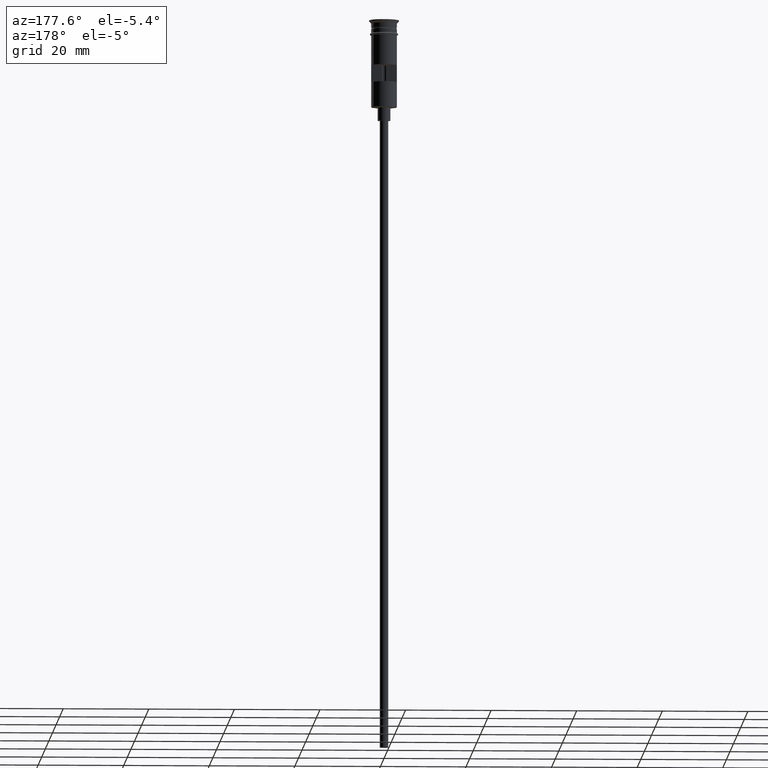
[diagram: clean part render]
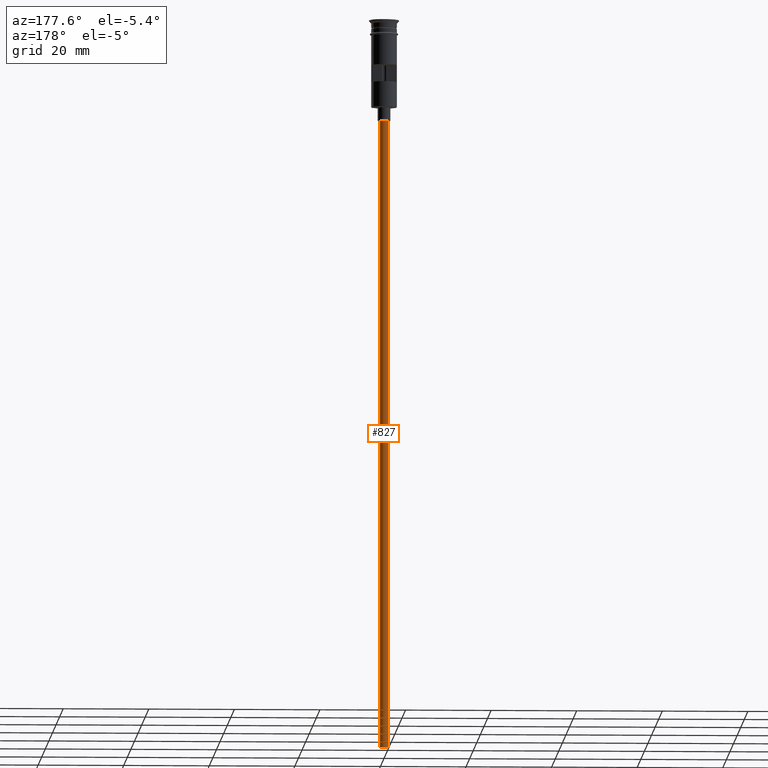
[diagram: same view with one face highlighted and labeled with its STEP entity id]
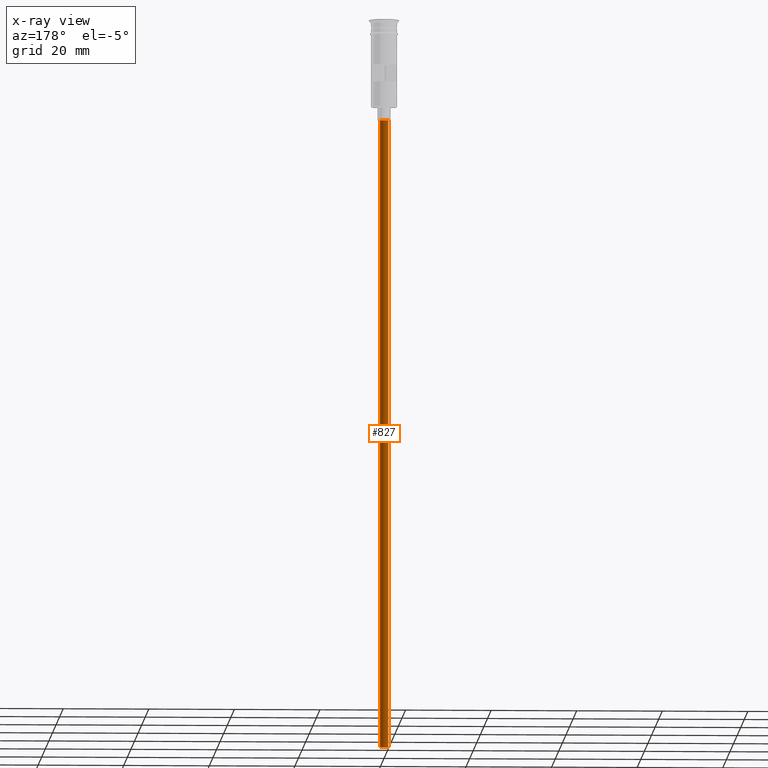
[diagram: x-ray of the same camera — body ghosted, the highlighted face saturated]
A machine part, auxiliary view. The second image highlights one B-rep face of the part: STEP entity #827.
The next image is the same camera in x-ray: the body ghosted, the highlighted face saturated — about 0% of this face is hidden behind the body in this view.
In plain terms, the highlighted cylindrical surface (edge-blend (fillet) strip) has radius 1 mm, axis along (-0, -0, 1).
Its self-contained STEP definition (entity closure, byte-faithful):
#75 = VERTEX_POINT ( 'NONE', #92 ) ;
#92 = CARTESIAN_POINT ( 'NONE',  ( 0.9999999999999997780, 0.000000000000000000, -23.50000000000000000 ) ) ;
#154 = VERTEX_POINT ( 'NONE', #1079 ) ;
#165 = EDGE_CURVE ( 'NONE', #154, #581, #303, .T. ) ;
#211 = VECTOR ( 'NONE', #1301, 1000.000000000000000 ) ;
#234 = CIRCLE ( 'NONE', #649, 0.9999999999999997780 ) ;
#264 = DIRECTION ( 'NONE',  ( -1.000000000000000000, 0.000000000000000000, 0.000000000000000000 ) ) ;
#303 = LINE ( 'NONE', #806, #211 ) ;
#346 = LINE ( 'NONE', #1479, #997 ) ;
#464 = DIRECTION ( 'NONE',  ( -0.000000000000000000, -0.000000000000000000, 1.000000000000000000 ) ) ;
#548 = EDGE_CURVE ( 'NONE', #154, #1195, #234, .T. ) ;
#554 = DIRECTION ( 'NONE',  ( 0.000000000000000000, 0.000000000000000000, -1.000000000000000000 ) ) ;
#581 = VERTEX_POINT ( 'NONE', #1039 ) ;
#608 = ORIENTED_EDGE ( 'NONE', *, *, #1202, .T. ) ;
#618 = EDGE_CURVE ( 'NONE', #1195, #75, #346, .T. ) ;
#634 = DIRECTION ( 'NONE',  ( -0.000000000000000000, -0.000000000000000000, 1.000000000000000000 ) ) ;
#649 = AXIS2_PLACEMENT_3D ( 'NONE', #1308, #554, #830 ) ;
#653 = AXIS2_PLACEMENT_3D ( 'NONE', #1421, #800, #264 ) ;
#734 = AXIS2_PLACEMENT_3D ( 'NONE', #1258, #634, #1398 ) ;
#775 = ORIENTED_EDGE ( 'NONE', *, *, #548, .F. ) ;
#800 = DIRECTION ( 'NONE',  ( 0.000000000000000000, 0.000000000000000000, -1.000000000000000000 ) ) ;
#806 = CARTESIAN_POINT ( 'NONE',  ( -0.9999999999999997780, 1.224646799147352961E-16, -170.4999999999999716 ) ) ;
#827 = ADVANCED_FACE ( 'NONE', ( #1127 ), #1392, .T. ) ;
#830 = DIRECTION ( 'NONE',  ( -1.000000000000000000, 0.000000000000000000, 0.000000000000000000 ) ) ;
#980 = ORIENTED_EDGE ( 'NONE', *, *, #165, .T. ) ;
#997 = VECTOR ( 'NONE', #464, 1000.000000000000000 ) ;
#1039 = CARTESIAN_POINT ( 'NONE',  ( -0.9999999999999997780, 1.224646799147352961E-16, -23.50000000000000000 ) ) ;
#1079 = CARTESIAN_POINT ( 'NONE',  ( -0.9999999999999997780, 1.224646799147352961E-16, -170.4999999999999716 ) ) ;
#1127 = FACE_OUTER_BOUND ( 'NONE', #1232, .T. ) ;
#1159 = CIRCLE ( 'NONE', #653, 0.9999999999999997780 ) ;
#1195 = VERTEX_POINT ( 'NONE', #1403 ) ;
#1202 = EDGE_CURVE ( 'NONE', #581, #75, #1159, .T. ) ;
#1232 = EDGE_LOOP ( 'NONE', ( #775, #980, #608, #1570 ) ) ;
#1258 = CARTESIAN_POINT ( 'NONE',  ( 0.000000000000000000, 0.000000000000000000, -170.4999999999999716 ) ) ;
#1301 = DIRECTION ( 'NONE',  ( -0.000000000000000000, -0.000000000000000000, 1.000000000000000000 ) ) ;
#1308 = CARTESIAN_POINT ( 'NONE',  ( 0.000000000000000000, 0.000000000000000000, -170.4999999999999716 ) ) ;
#1392 = CYLINDRICAL_SURFACE ( 'NONE', #734, 0.9999999999999997780 ) ;
#1398 = DIRECTION ( 'NONE',  ( 1.000000000000000000, 0.000000000000000000, 0.000000000000000000 ) ) ;
#1403 = CARTESIAN_POINT ( 'NONE',  ( 0.9999999999999997780, 0.000000000000000000, -170.4999999999999716 ) ) ;
#1421 = CARTESIAN_POINT ( 'NONE',  ( 0.000000000000000000, 0.000000000000000000, -23.50000000000000000 ) ) ;
#1479 = CARTESIAN_POINT ( 'NONE',  ( 0.9999999999999997780, 0.000000000000000000, -170.4999999999999716 ) ) ;
#1570 = ORIENTED_EDGE ( 'NONE', *, *, #618, .F. ) ;